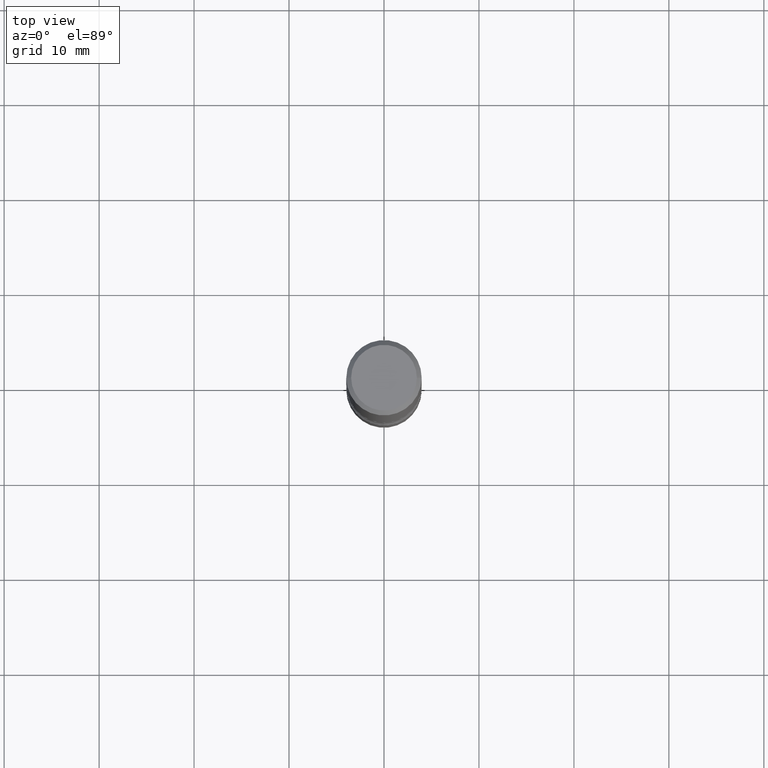
[diagram: clean part render]
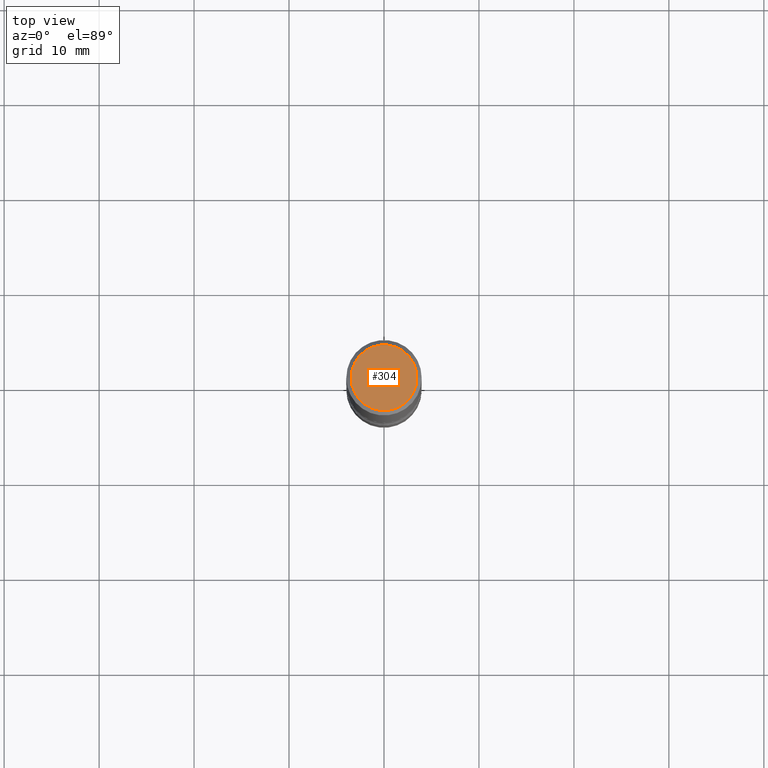
[diagram: same view with one face highlighted and labeled with its STEP entity id]
A machine part, top view. The second image highlights one B-rep face of the part: STEP entity #304.
In plain terms, the highlighted planar face has unit normal (0, -0, -1).
Its self-contained STEP definition (entity closure, byte-faithful):
#4 = FACE_OUTER_BOUND ( 'NONE', #418, .T. ) ;
#140 = ORIENTED_EDGE ( 'NONE', *, *, #157, .T. ) ;
#141 = AXIS2_PLACEMENT_3D ( 'NONE', #321, #407, #204 ) ;
#157 = EDGE_CURVE ( 'NONE', #253, #232, #290, .T. ) ;
#162 = CARTESIAN_POINT ( 'NONE',  ( -0.1362499999999998712, 9.863434782231840290E-16, -6.775751096333132877E-30 ) ) ;
#191 = CARTESIAN_POINT ( 'NONE',  ( 0.000000000000000000, 0.000000000000000000, 0.000000000000000000 ) ) ;
#200 = CARTESIAN_POINT ( 'NONE',  ( 0.1362499999999998712, -1.038262645562517138E-15, 6.957025900226689470E-30 ) ) ;
#204 = DIRECTION ( 'NONE',  ( 1.000000000000000000, -6.982962677686266711E-15, 4.876176775795936353E-29 ) ) ;
#225 = AXIS2_PLACEMENT_3D ( 'NONE', #299, #560, #423 ) ;
#232 = VERTEX_POINT ( 'NONE', #162 ) ;
#253 = VERTEX_POINT ( 'NONE', #200 ) ;
#273 = EDGE_CURVE ( 'NONE', #232, #253, #558, .T. ) ;
#290 = CIRCLE ( 'NONE', #357, 0.1362499999999998712 ) ;
#299 = CARTESIAN_POINT ( 'NONE',  ( 9.514286648347529716E-16, 0.1362499999999998712, -4.757143324173781621E-16 ) ) ;
#304 = ADVANCED_FACE ( 'NONE', ( #4 ), #468, .F. ) ;
#321 = CARTESIAN_POINT ( 'NONE',  ( 0.000000000000000000, 0.000000000000000000, 0.000000000000000000 ) ) ;
#357 = AXIS2_PLACEMENT_3D ( 'NONE', #191, #387, #389 ) ;
#366 = ORIENTED_EDGE ( 'NONE', *, *, #273, .T. ) ;
#387 = DIRECTION ( 'NONE',  ( -2.445468806185136597E-29, 3.491481338843145583E-15, 1.000000000000000000 ) ) ;
#389 = DIRECTION ( 'NONE',  ( 1.000000000000000000, -6.982962677686266711E-15, 4.876176775795936353E-29 ) ) ;
#407 = DIRECTION ( 'NONE',  ( -2.445468806185136597E-29, 3.491481338843145583E-15, 1.000000000000000000 ) ) ;
#418 = EDGE_LOOP ( 'NONE', ( #366, #140 ) ) ;
#423 = DIRECTION ( 'NONE',  ( -1.000000000000000000, 6.982962677686265922E-15, -4.876176775795935793E-29 ) ) ;
#468 = PLANE ( 'NONE',  #225 ) ;
#558 = CIRCLE ( 'NONE', #141, 0.1362499999999998712 ) ;
#560 = DIRECTION ( 'NONE',  ( 2.438088387897960049E-29, -3.491481338843145188E-15, -1.000000000000000000 ) ) ;